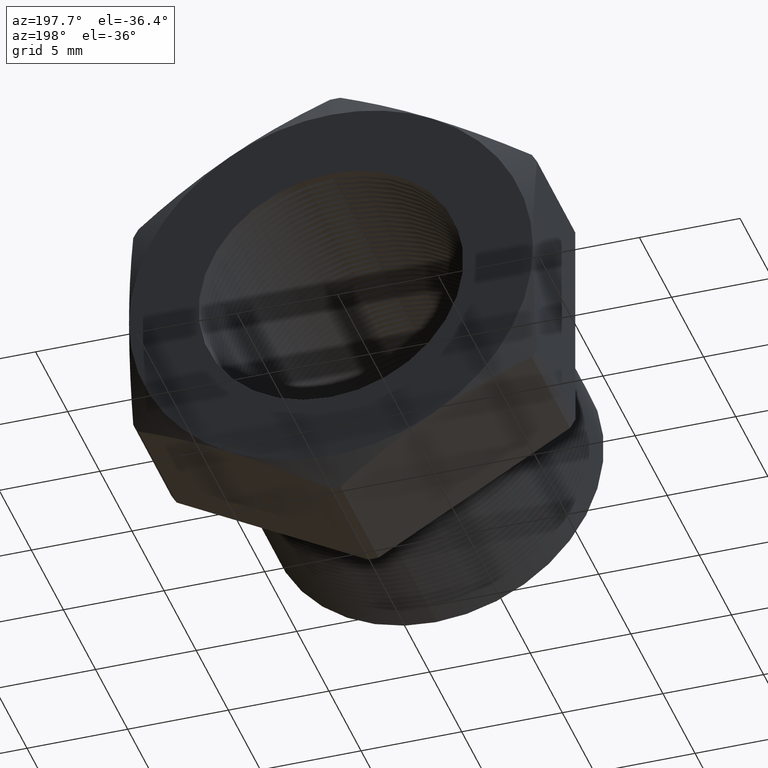
[diagram: clean part render]
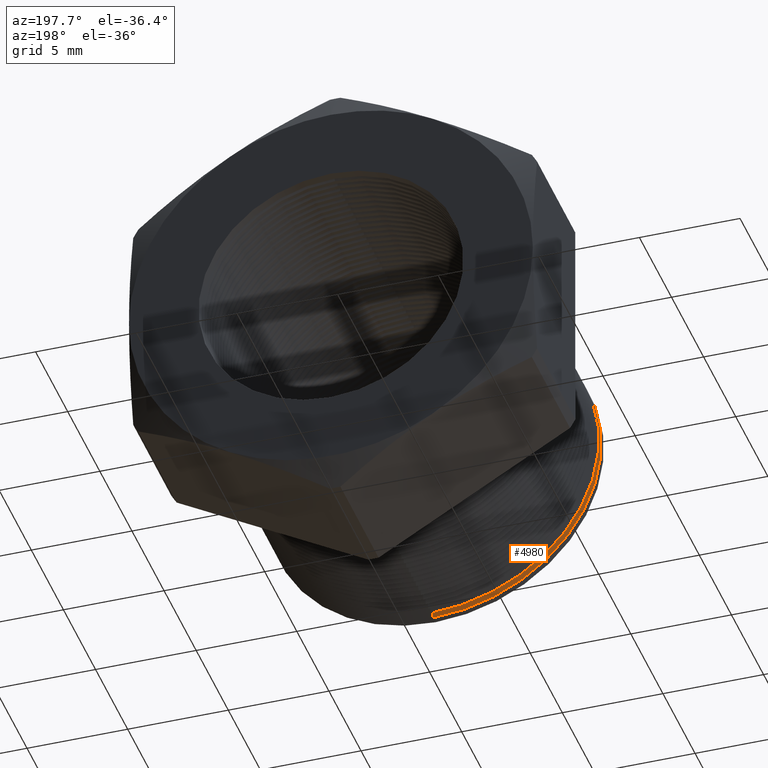
[diagram: same view with one face highlighted and labeled with its STEP entity id]
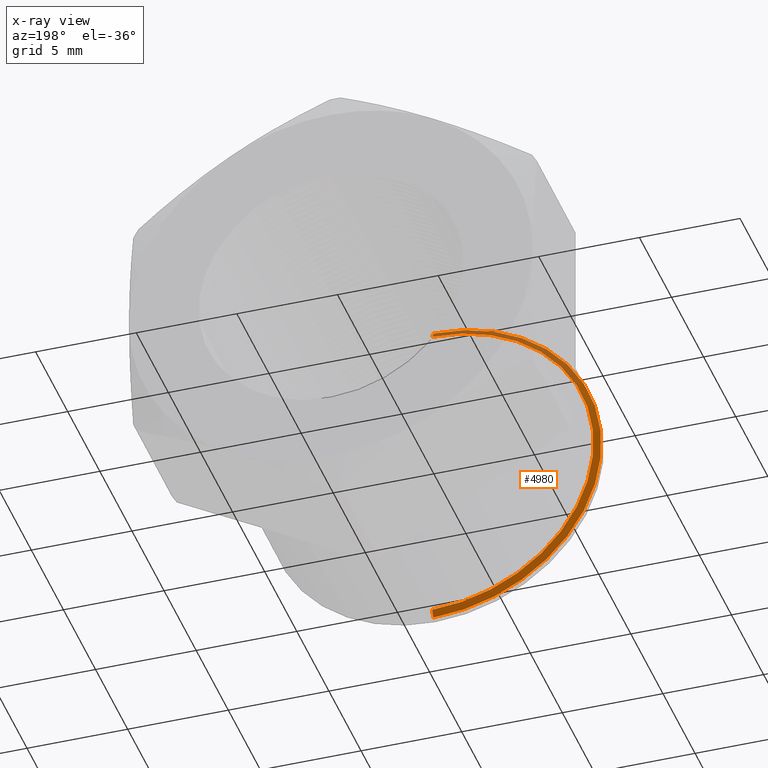
[diagram: x-ray of the same camera — body ghosted, the highlighted face saturated]
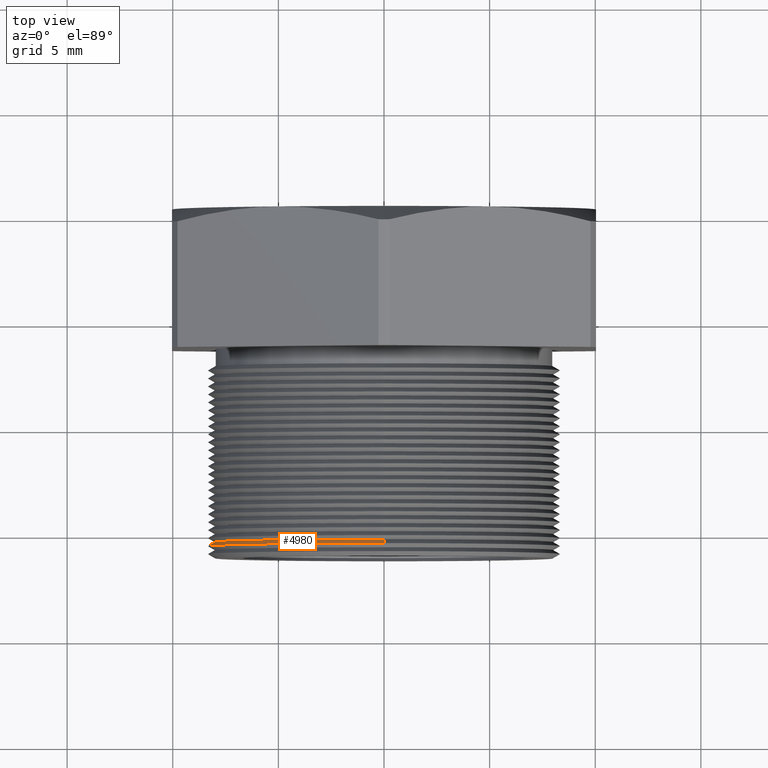
[diagram: same view with one face highlighted and labeled with its STEP entity id]
A machine part, auxiliary view. The second image highlights one B-rep face of the part: STEP entity #4980.
The next image is the same camera in x-ray: the body ghosted, the highlighted face saturated — about 23% of this face is hidden behind the body in this view.
A second angle (top view) of the same face is appended — the face is thin or edge-on in the first view.
In plain terms, the highlighted conical surface has half-angle 60 deg.
Its self-contained STEP definition (entity closure, byte-faithful):
#706 = DIRECTION ( 'NONE',  ( 1.060575238724908000E-016, -0.4999999999999983900, 0.8660254037844394800 ) ) ;
#707 = VECTOR ( 'NONE', #706, 39.37007874015748100 ) ;
#708 = CARTESIAN_POINT ( 'NONE',  ( 3.857637417314163300E-017, -0.2118527551899911700, 0.3150000000000000600 ) ) ;
#709 = LINE ( 'NONE', #708, #707 ) ;
#714 = CARTESIAN_POINT ( 'NONE',  ( 0.0000000000000000000, -0.2123651094170520800, 0.3158874235527422400 ) ) ;
#718 = DIRECTION ( 'NONE',  ( 0.0000000000000000000, -0.4999999999999983900, -0.8660254037844394800 ) ) ;
#719 = VECTOR ( 'NONE', #718, 39.37007874015748100 ) ;
#720 = CARTESIAN_POINT ( 'NONE',  ( 0.0000000000000000000, -0.2118527551899911700, -0.3150000000000000600 ) ) ;
#721 = LINE ( 'NONE', #720, #719 ) ;
#726 = CARTESIAN_POINT ( 'NONE',  ( 0.0000000000000000000, -0.2198051094170520900, -0.3287738815610546900 ) ) ;
#733 = CARTESIAN_POINT ( 'NONE',  ( 4.026318816969966800E-017, -0.2198051094170520900, 0.3287738815610546900 ) ) ;
#768 = CARTESIAN_POINT ( 'NONE',  ( 3.947412019208833400E-017, -0.2123651094170520800, -0.3158874235527422400 ) ) ;
#4967 = ORIENTED_EDGE ( 'NONE', *, *, #5344, .T. ) ;
#4968 = ORIENTED_EDGE ( 'NONE', *, *, #4969, .T. ) ;
#4969 = EDGE_CURVE ( 'NONE', #5341, #5336, #8195, .T. ) ;
#4972 = ORIENTED_EDGE ( 'NONE', *, *, #4988, .T. ) ;
#4975 = EDGE_LOOP ( 'NONE', ( #4976, #4972, #4967, #4968 ) ) ;
#4976 = ORIENTED_EDGE ( 'NONE', *, *, #5348, .F. ) ;
#4980 = ADVANCED_FACE ( 'NONE', ( #8173 ), #8171, .T. ) ;
#4988 = EDGE_CURVE ( 'NONE', #5347, #5353, #8218, .T. ) ;
#5336 = VERTEX_POINT ( 'NONE', #733 ) ;
#5341 = VERTEX_POINT ( 'NONE', #726 ) ;
#5344 = EDGE_CURVE ( 'NONE', #5353, #5341, #721, .T. ) ;
#5347 = VERTEX_POINT ( 'NONE', #714 ) ;
#5348 = EDGE_CURVE ( 'NONE', #5347, #5336, #709, .T. ) ;
#5353 = VERTEX_POINT ( 'NONE', #768 ) ;
#8167 = DIRECTION ( 'NONE',  ( 0.0000000000000000000, 0.0000000000000000000, -1.000000000000000000 ) ) ;
#8168 = DIRECTION ( 'NONE',  ( 0.0000000000000000000, -1.000000000000000000, 0.0000000000000000000 ) ) ;
#8169 = CARTESIAN_POINT ( 'NONE',  ( 0.0000000000000000000, -0.2118527551899911700, 0.0000000000000000000 ) ) ;
#8170 = AXIS2_PLACEMENT_3D ( 'NONE', #8169, #8168, #8167 ) ;
#8171 = CONICAL_SURFACE ( 'NONE', #8170, 0.3150000000000000600, 1.047197551196599600 ) ;
#8173 = FACE_OUTER_BOUND ( 'NONE', #4975, .T. ) ;
#8189 = DIRECTION ( 'NONE',  ( 0.0000000000000000000, 0.0000000000000000000, 1.000000000000000000 ) ) ;
#8190 = DIRECTION ( 'NONE',  ( -0.0000000000000000000, 1.000000000000000000, -0.0000000000000000000 ) ) ;
#8191 = CARTESIAN_POINT ( 'NONE',  ( 0.0000000000000000000, -0.2198051094170520900, 0.0000000000000000000 ) ) ;
#8192 = AXIS2_PLACEMENT_3D ( 'NONE', #8191, #8190, #8189 ) ;
#8195 = CIRCLE ( 'NONE', #8192, 0.3287738815610546900 ) ;
#8210 = DIRECTION ( 'NONE',  ( 0.0000000000000000000, 0.0000000000000000000, -1.000000000000000000 ) ) ;
#8211 = DIRECTION ( 'NONE',  ( 0.0000000000000000000, -1.000000000000000000, 0.0000000000000000000 ) ) ;
#8212 = CARTESIAN_POINT ( 'NONE',  ( 0.0000000000000000000, -0.2123651094170520800, 0.0000000000000000000 ) ) ;
#8213 = AXIS2_PLACEMENT_3D ( 'NONE', #8212, #8211, #8210 ) ;
#8218 = CIRCLE ( 'NONE', #8213, 0.3158874235527422400 ) ;